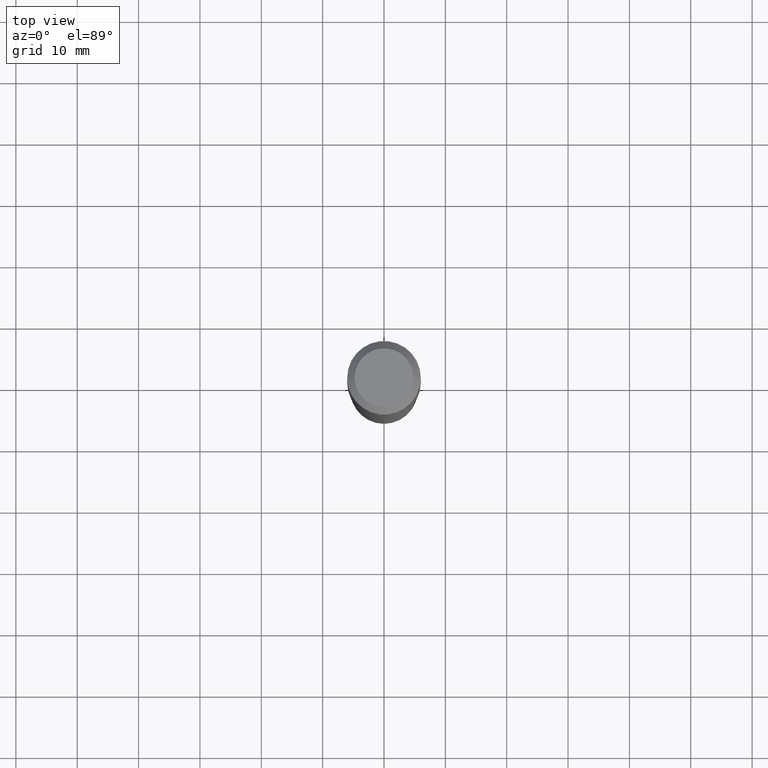
[diagram: clean part render]
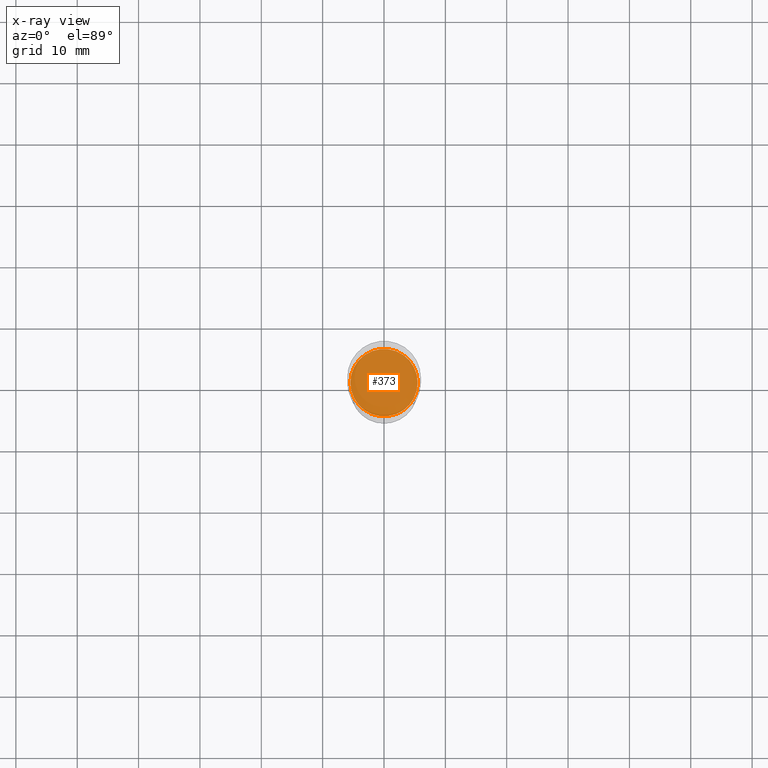
[diagram: x-ray — body ghosted, one internal face saturated and labeled with its STEP entity id]
A machine part, top view, then the same camera in x-ray: the body is ghosted and one INTERNAL B-rep face — a face not visible from any outside direction — is saturated and labeled: STEP entity #373.
In plain terms, the highlighted planar face has unit normal (-0, 0, 1).
Its self-contained STEP definition (entity closure, byte-faithful):
#13 = DIRECTION ( 'NONE',  ( 1.000000000000000000, -6.982962677686265922E-15, 4.876176775795935793E-29 ) ) ;
#25 = DIRECTION ( 'NONE',  ( 1.000000000000000000, -6.982962677686266711E-15, 0.000000000000000000 ) ) ;
#45 = EDGE_CURVE ( 'NONE', #434, #67, #320, .T. ) ;
#61 = PLANE ( 'NONE',  #275 ) ;
#65 = EDGE_LOOP ( 'NONE', ( #176, #314 ) ) ;
#67 = VERTEX_POINT ( 'NONE', #288 ) ;
#95 = CARTESIAN_POINT ( 'NONE',  ( 0.2160500000000000198, -7.970353600311127505E-15, -1.850700000000000012 ) ) ;
#104 = CARTESIAN_POINT ( 'NONE',  ( 4.525829119606832626E-29, -6.461684513797009689E-15, -1.850700000000000012 ) ) ;
#123 = CARTESIAN_POINT ( 'NONE',  ( 4.525829119606832626E-29, -6.461684513797009689E-15, -1.850700000000000012 ) ) ;
#125 = DIRECTION ( 'NONE',  ( -2.438088387897960049E-29, 3.491481338843145188E-15, 1.000000000000000000 ) ) ;
#130 = FACE_OUTER_BOUND ( 'NONE', #65, .T. ) ;
#176 = ORIENTED_EDGE ( 'NONE', *, *, #45, .F. ) ;
#207 = EDGE_CURVE ( 'NONE', #67, #434, #453, .T. ) ;
#248 = DIRECTION ( 'NONE',  ( -2.445468806185136597E-29, 3.491481338843145583E-15, 1.000000000000000000 ) ) ;
#275 = AXIS2_PLACEMENT_3D ( 'NONE', #123, #125, #13 ) ;
#288 = CARTESIAN_POINT ( 'NONE',  ( -0.2160500000000000198, -4.923907706013202290E-15, -1.850700000000000012 ) ) ;
#314 = ORIENTED_EDGE ( 'NONE', *, *, #207, .F. ) ;
#320 = CIRCLE ( 'NONE', #404, 0.2160500000000000198 ) ;
#331 = DIRECTION ( 'NONE',  ( -2.445468806185136597E-29, 3.491481338843145583E-15, 1.000000000000000000 ) ) ;
#369 = CARTESIAN_POINT ( 'NONE',  ( 4.525829119606832626E-29, -6.461684513797009689E-15, -1.850700000000000012 ) ) ;
#370 = DIRECTION ( 'NONE',  ( 1.000000000000000000, -6.982962677686266711E-15, 0.000000000000000000 ) ) ;
#373 = ADVANCED_FACE ( 'NONE', ( #130 ), #61, .F. ) ;
#404 = AXIS2_PLACEMENT_3D ( 'NONE', #104, #331, #370 ) ;
#434 = VERTEX_POINT ( 'NONE', #95 ) ;
#453 = CIRCLE ( 'NONE', #458, 0.2160500000000000198 ) ;
#458 = AXIS2_PLACEMENT_3D ( 'NONE', #369, #248, #25 ) ;